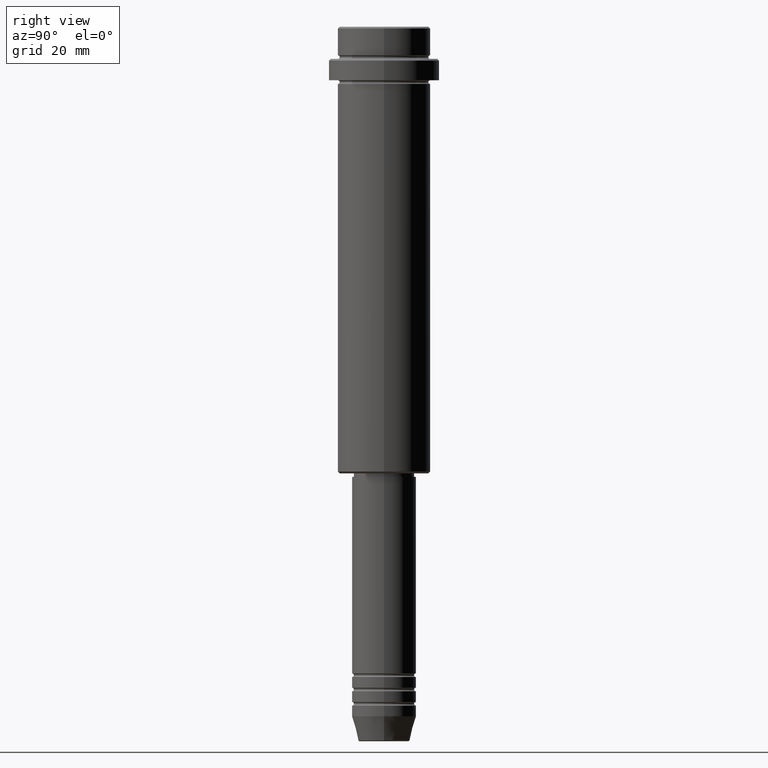
[diagram: clean part render]
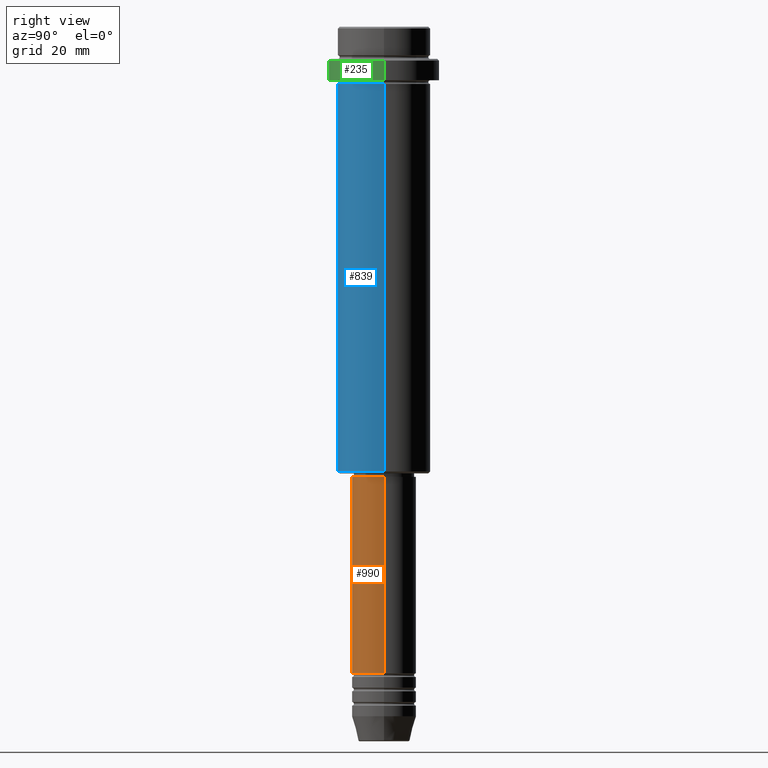
[diagram: same view with three faces highlighted in distinct colors, each labeled with its STEP entity id]
A machine part, right view with three faces highlighted in distinct colors.
Their STEP definitions:

[orange] entity #990 — the highlighted cylindrical surface (edge-blend (fillet) strip) has radius 9 mm, axis along (-0, -0, 1).
#30 = DIRECTION ( 'NONE',  ( -0.000000000000000000, -0.000000000000000000, 1.000000000000000000 ) ) ;
#61 = CARTESIAN_POINT ( 'NONE',  ( 9.000000000000001776, 0.000000000000000000, 0.000000000000000000 ) ) ;
#120 = DIRECTION ( 'NONE',  ( 1.000000000000000000, 0.000000000000000000, 0.000000000000000000 ) ) ;
#122 = EDGE_CURVE ( 'NONE', #426, #307, #249, .T. ) ;
#126 = CARTESIAN_POINT ( 'NONE',  ( -9.000000000000001776, 1.102182119232617911E-15, 0.000000000000000000 ) ) ;
#173 = EDGE_CURVE ( 'NONE', #1353, #426, #784, .T. ) ;
#249 = CIRCLE ( 'NONE', #1094, 9.000000000000001776 ) ;
#260 = CARTESIAN_POINT ( 'NONE',  ( 9.000000000000000000, 0.000000000000000000, -180.9999999999999147 ) ) ;
#307 = VERTEX_POINT ( 'NONE', #1222 ) ;
#308 = DIRECTION ( 'NONE',  ( -0.000000000000000000, -0.000000000000000000, 1.000000000000000000 ) ) ;
#397 = VECTOR ( 'NONE', #308, 1000.000000000000000 ) ;
#426 = VERTEX_POINT ( 'NONE', #1258 ) ;
#444 = DIRECTION ( 'NONE',  ( 1.000000000000000000, 0.000000000000000000, 0.000000000000000000 ) ) ;
#451 = ORIENTED_EDGE ( 'NONE', *, *, #509, .T. ) ;
#462 = DIRECTION ( 'NONE',  ( -0.000000000000000000, -0.000000000000000000, 1.000000000000000000 ) ) ;
#509 = EDGE_CURVE ( 'NONE', #793, #307, #1152, .T. ) ;
#580 = CARTESIAN_POINT ( 'NONE',  ( 0.000000000000000000, 0.000000000000000000, 0.000000000000000000 ) ) ;
#645 = ORIENTED_EDGE ( 'NONE', *, *, #739, .T. ) ;
#667 = CARTESIAN_POINT ( 'NONE',  ( 0.000000000000000000, 0.000000000000000000, -180.9999999999999147 ) ) ;
#731 = DIRECTION ( 'NONE',  ( 1.000000000000000000, 0.000000000000000000, 0.000000000000000000 ) ) ;
#739 = EDGE_CURVE ( 'NONE', #1353, #793, #824, .T. ) ;
#779 = CYLINDRICAL_SURFACE ( 'NONE', #1119, 9.000000000000001776 ) ;
#784 = LINE ( 'NONE', #126, #1053 ) ;
#793 = VERTEX_POINT ( 'NONE', #260 ) ;
#816 = CARTESIAN_POINT ( 'NONE',  ( 0.000000000000000000, 0.000000000000000000, -126.0000000000000284 ) ) ;
#824 = CIRCLE ( 'NONE', #1244, 9.000000000000000000 ) ;
#990 = ADVANCED_FACE ( 'NONE', ( #1335 ), #779, .T. ) ;
#1022 = EDGE_LOOP ( 'NONE', ( #1057, #645, #451, #1303 ) ) ;
#1053 = VECTOR ( 'NONE', #30, 1000.000000000000000 ) ;
#1057 = ORIENTED_EDGE ( 'NONE', *, *, #173, .F. ) ;
#1066 = DIRECTION ( 'NONE',  ( -0.000000000000000000, -0.000000000000000000, 1.000000000000000000 ) ) ;
#1094 = AXIS2_PLACEMENT_3D ( 'NONE', #816, #1066, #731 ) ;
#1102 = DIRECTION ( 'NONE',  ( -0.000000000000000000, -0.000000000000000000, 1.000000000000000000 ) ) ;
#1119 = AXIS2_PLACEMENT_3D ( 'NONE', #580, #462, #444 ) ;
#1152 = LINE ( 'NONE', #61, #397 ) ;
#1222 = CARTESIAN_POINT ( 'NONE',  ( 9.000000000000001776, 0.000000000000000000, -126.0000000000000284 ) ) ;
#1244 = AXIS2_PLACEMENT_3D ( 'NONE', #667, #1102, #120 ) ;
#1258 = CARTESIAN_POINT ( 'NONE',  ( -9.000000000000001776, 1.102182119232617911E-15, -126.0000000000000284 ) ) ;
#1300 = CARTESIAN_POINT ( 'NONE',  ( -9.000000000000000000, 1.102182119232617714E-15, -180.9999999999999147 ) ) ;
#1303 = ORIENTED_EDGE ( 'NONE', *, *, #122, .F. ) ;
#1335 = FACE_OUTER_BOUND ( 'NONE', #1022, .T. ) ;
#1353 = VERTEX_POINT ( 'NONE', #1300 ) ;

[blue] entity #839 — the highlighted cylindrical surface (partial cylindrical patch) has radius 13 mm, axis along (-0, -0, 1).
#3 = EDGE_LOOP ( 'NONE', ( #145, #855, #1005, #288 ) ) ;
#31 = CARTESIAN_POINT ( 'NONE',  ( 0.000000000000000000, 0.000000000000000000, -124.5000000000000284 ) ) ;
#35 = CARTESIAN_POINT ( 'NONE',  ( 0.000000000000000000, 0.000000000000000000, 0.000000000000000000 ) ) ;
#90 = CARTESIAN_POINT ( 'NONE',  ( -13.00000000000000000, 1.592040838891559095E-15, 0.000000000000000000 ) ) ;
#136 = CIRCLE ( 'NONE', #648, 13.00000000000000000 ) ;
#145 = ORIENTED_EDGE ( 'NONE', *, *, #1253, .F. ) ;
#151 = VERTEX_POINT ( 'NONE', #239 ) ;
#152 = DIRECTION ( 'NONE',  ( -0.000000000000000000, -0.000000000000000000, 1.000000000000000000 ) ) ;
#164 = VERTEX_POINT ( 'NONE', #466 ) ;
#188 = CARTESIAN_POINT ( 'NONE',  ( 13.00000000000000000, 0.000000000000000000, 0.000000000000000000 ) ) ;
#214 = CARTESIAN_POINT ( 'NONE',  ( -13.00000000000000000, 1.592040838891559095E-15, -124.5000000000000284 ) ) ;
#220 = DIRECTION ( 'NONE',  ( 1.000000000000000000, 0.000000000000000000, 0.000000000000000000 ) ) ;
#239 = CARTESIAN_POINT ( 'NONE',  ( -13.00000000000000000, 1.592040838891559095E-15, -16.00000000000000000 ) ) ;
#256 = VECTOR ( 'NONE', #1296, 1000.000000000000000 ) ;
#288 = ORIENTED_EDGE ( 'NONE', *, *, #1001, .F. ) ;
#302 = AXIS2_PLACEMENT_3D ( 'NONE', #35, #152, #1004 ) ;
#334 = EDGE_CURVE ( 'NONE', #1101, #164, #622, .T. ) ;
#431 = CARTESIAN_POINT ( 'NONE',  ( 13.00000000000000000, 0.000000000000000000, -16.00000000000000000 ) ) ;
#466 = CARTESIAN_POINT ( 'NONE',  ( 13.00000000000000000, 0.000000000000000000, -124.5000000000000284 ) ) ;
#491 = FACE_OUTER_BOUND ( 'NONE', #3, .T. ) ;
#508 = AXIS2_PLACEMENT_3D ( 'NONE', #31, #1249, #909 ) ;
#585 = CYLINDRICAL_SURFACE ( 'NONE', #302, 13.00000000000000000 ) ;
#622 = CIRCLE ( 'NONE', #508, 13.00000000000000000 ) ;
#648 = AXIS2_PLACEMENT_3D ( 'NONE', #1317, #904, #220 ) ;
#737 = DIRECTION ( 'NONE',  ( -0.000000000000000000, -0.000000000000000000, 1.000000000000000000 ) ) ;
#839 = ADVANCED_FACE ( 'NONE', ( #491 ), #585, .T. ) ;
#855 = ORIENTED_EDGE ( 'NONE', *, *, #334, .T. ) ;
#884 = VERTEX_POINT ( 'NONE', #431 ) ;
#904 = DIRECTION ( 'NONE',  ( -0.000000000000000000, -0.000000000000000000, 1.000000000000000000 ) ) ;
#909 = DIRECTION ( 'NONE',  ( -1.000000000000000000, 0.000000000000000000, 0.000000000000000000 ) ) ;
#1001 = EDGE_CURVE ( 'NONE', #151, #884, #136, .T. ) ;
#1004 = DIRECTION ( 'NONE',  ( 1.000000000000000000, 0.000000000000000000, 0.000000000000000000 ) ) ;
#1005 = ORIENTED_EDGE ( 'NONE', *, *, #1274, .T. ) ;
#1075 = LINE ( 'NONE', #188, #1123 ) ;
#1085 = LINE ( 'NONE', #90, #256 ) ;
#1101 = VERTEX_POINT ( 'NONE', #214 ) ;
#1123 = VECTOR ( 'NONE', #737, 1000.000000000000000 ) ;
#1249 = DIRECTION ( 'NONE',  ( -0.000000000000000000, -0.000000000000000000, 1.000000000000000000 ) ) ;
#1253 = EDGE_CURVE ( 'NONE', #1101, #151, #1085, .T. ) ;
#1274 = EDGE_CURVE ( 'NONE', #164, #884, #1075, .T. ) ;
#1296 = DIRECTION ( 'NONE',  ( -0.000000000000000000, -0.000000000000000000, 1.000000000000000000 ) ) ;
#1317 = CARTESIAN_POINT ( 'NONE',  ( 0.000000000000000000, 0.000000000000000000, -16.00000000000000000 ) ) ;

[green] entity #235 — the highlighted cylindrical surface (partial cylindrical patch) has radius 15.5 mm, axis along (-0, -0, 1).
#34 = DIRECTION ( 'NONE',  ( 1.000000000000000000, 0.000000000000000000, 0.000000000000000000 ) ) ;
#96 = CYLINDRICAL_SURFACE ( 'NONE', #322, 15.50000000000000000 ) ;
#113 = ORIENTED_EDGE ( 'NONE', *, *, #686, .T. ) ;
#161 = CARTESIAN_POINT ( 'NONE',  ( 15.50000000000000000, 0.000000000000000000, -9.499999999999985789 ) ) ;
#223 = DIRECTION ( 'NONE',  ( -0.000000000000000000, -0.000000000000000000, 1.000000000000000000 ) ) ;
#235 = ADVANCED_FACE ( 'NONE', ( #327 ), #96, .T. ) ;
#241 = CARTESIAN_POINT ( 'NONE',  ( -15.50000000000000000, 1.898202538678397557E-15, 0.000000000000000000 ) ) ;
#306 = CIRCLE ( 'NONE', #1196, 15.50000000000000000 ) ;
#313 = EDGE_CURVE ( 'NONE', #848, #1293, #601, .T. ) ;
#322 = AXIS2_PLACEMENT_3D ( 'NONE', #1309, #1347, #1364 ) ;
#327 = FACE_OUTER_BOUND ( 'NONE', #1366, .T. ) ;
#339 = EDGE_CURVE ( 'NONE', #848, #938, #483, .T. ) ;
#350 = CARTESIAN_POINT ( 'NONE',  ( -15.50000000000000000, 1.898202538678397557E-15, -15.00000000000000178 ) ) ;
#384 = CARTESIAN_POINT ( 'NONE',  ( 0.000000000000000000, 0.000000000000000000, -15.00000000000000178 ) ) ;
#442 = AXIS2_PLACEMENT_3D ( 'NONE', #384, #790, #34 ) ;
#482 = ORIENTED_EDGE ( 'NONE', *, *, #1394, .T. ) ;
#483 = LINE ( 'NONE', #241, #681 ) ;
#490 = VECTOR ( 'NONE', #223, 1000.000000000000000 ) ;
#528 = DIRECTION ( 'NONE',  ( 0.000000000000000000, 0.000000000000000000, -1.000000000000000000 ) ) ;
#601 = CIRCLE ( 'NONE', #442, 15.50000000000000000 ) ;
#681 = VECTOR ( 'NONE', #806, 1000.000000000000000 ) ;
#686 = EDGE_CURVE ( 'NONE', #1293, #921, #1201, .T. ) ;
#726 = CARTESIAN_POINT ( 'NONE',  ( 15.50000000000000000, 0.000000000000000000, -15.00000000000000178 ) ) ;
#790 = DIRECTION ( 'NONE',  ( -0.000000000000000000, -0.000000000000000000, 1.000000000000000000 ) ) ;
#806 = DIRECTION ( 'NONE',  ( -0.000000000000000000, -0.000000000000000000, 1.000000000000000000 ) ) ;
#848 = VERTEX_POINT ( 'NONE', #350 ) ;
#864 = CARTESIAN_POINT ( 'NONE',  ( 15.50000000000000000, 0.000000000000000000, 0.000000000000000000 ) ) ;
#921 = VERTEX_POINT ( 'NONE', #161 ) ;
#938 = VERTEX_POINT ( 'NONE', #1417 ) ;
#950 = ORIENTED_EDGE ( 'NONE', *, *, #313, .T. ) ;
#963 = ORIENTED_EDGE ( 'NONE', *, *, #339, .F. ) ;
#1052 = DIRECTION ( 'NONE',  ( 1.000000000000000000, 0.000000000000000000, 0.000000000000000000 ) ) ;
#1064 = CARTESIAN_POINT ( 'NONE',  ( 0.000000000000000000, 0.000000000000000000, -9.499999999999985789 ) ) ;
#1196 = AXIS2_PLACEMENT_3D ( 'NONE', #1064, #528, #1052 ) ;
#1201 = LINE ( 'NONE', #864, #490 ) ;
#1293 = VERTEX_POINT ( 'NONE', #726 ) ;
#1309 = CARTESIAN_POINT ( 'NONE',  ( 0.000000000000000000, 0.000000000000000000, 0.000000000000000000 ) ) ;
#1347 = DIRECTION ( 'NONE',  ( -0.000000000000000000, -0.000000000000000000, 1.000000000000000000 ) ) ;
#1364 = DIRECTION ( 'NONE',  ( 1.000000000000000000, 0.000000000000000000, 0.000000000000000000 ) ) ;
#1366 = EDGE_LOOP ( 'NONE', ( #963, #950, #113, #482 ) ) ;
#1394 = EDGE_CURVE ( 'NONE', #921, #938, #306, .T. ) ;
#1417 = CARTESIAN_POINT ( 'NONE',  ( -15.50000000000000000, 1.898202538678397557E-15, -9.499999999999985789 ) ) ;